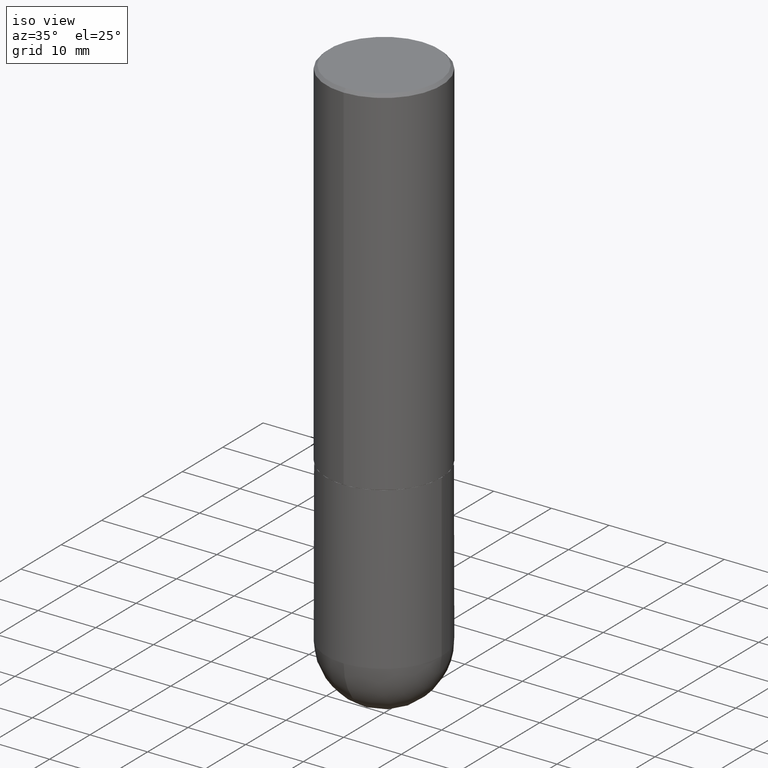
[diagram: clean part render]
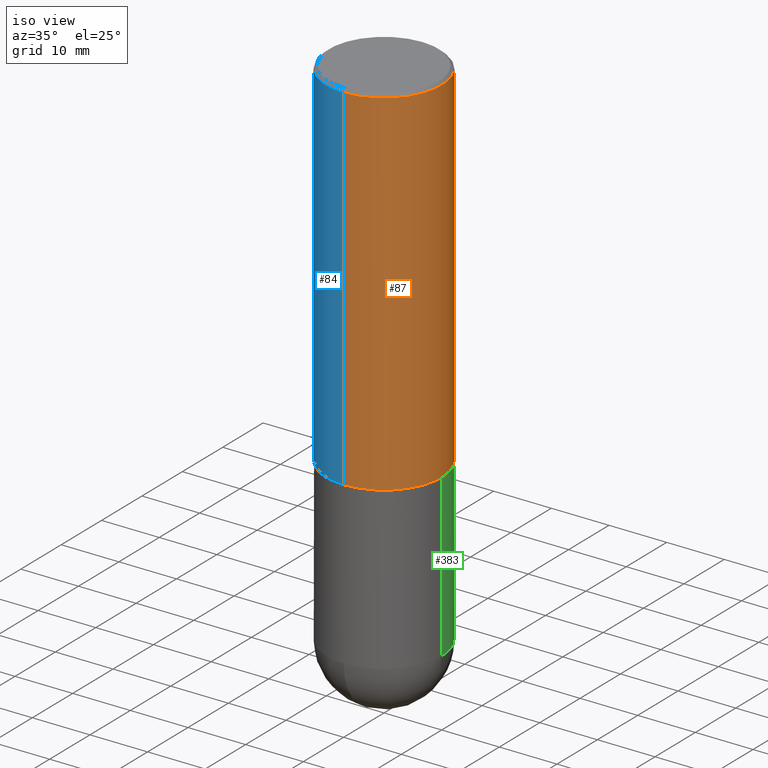
[diagram: same view with three faces highlighted in distinct colors, each labeled with its STEP entity id]
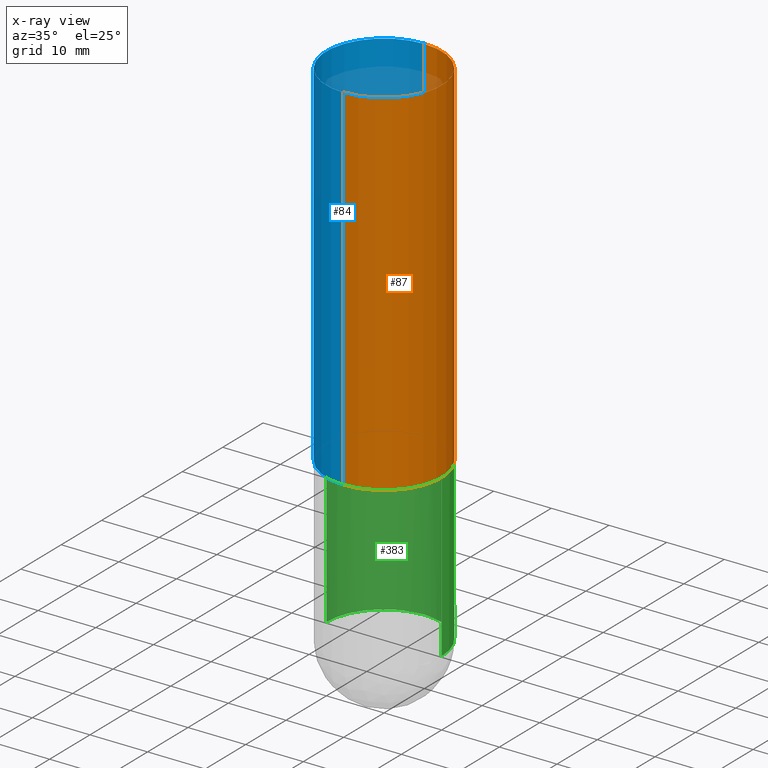
[diagram: x-ray of the same camera — body ghosted, the three highlighted faces saturated]
A machine part, iso view with three faces highlighted in distinct colors.
The next image is the same camera in x-ray (body ghosted, the three faces saturated) — at least one of them is partly hidden behind the body in this view.
Their STEP definitions:

[orange] entity #87 — the highlighted cylindrical surface (partial cylindrical patch) has radius 10 mm, axis along (-0, 0, 1).
#3 = ORIENTED_EDGE ( 'NONE', *, *, #237, .F. ) ;
#10 = CARTESIAN_POINT ( 'NONE',  ( -2.749192406205025235E-15, -0.3937000000000088207, -2.439899999999998847 ) ) ;
#34 = CARTESIAN_POINT ( 'NONE',  ( -2.749192406205084005E-15, -0.3937000000000001609, 1.375145271379853145E-15 ) ) ;
#41 = CARTESIAN_POINT ( 'NONE',  ( 2.749192406205083217E-15, 0.3936999999999999389, -0.02000000000000146452 ) ) ;
#55 = ORIENTED_EDGE ( 'NONE', *, *, #184, .F. ) ;
#58 = DIRECTION ( 'NONE',  ( -6.982962677686265922E-15, -1.000000000000000000, 3.469453890861393601E-15 ) ) ;
#65 = ORIENTED_EDGE ( 'NONE', *, *, #120, .T. ) ;
#78 = AXIS2_PLACEMENT_3D ( 'NONE', #157, #90, #187 ) ;
#87 = ADVANCED_FACE ( 'NONE', ( #317 ), #353, .T. ) ;
#89 = VERTEX_POINT ( 'NONE', #220 ) ;
#90 = DIRECTION ( 'NONE',  ( -2.444494936922263557E-29, 3.492875975056775902E-15, 1.000000000000000000 ) ) ;
#112 = AXIS2_PLACEMENT_3D ( 'NONE', #411, #290, #217 ) ;
#120 = EDGE_CURVE ( 'NONE', #349, #89, #252, .T. ) ;
#121 = DIRECTION ( 'NONE',  ( -2.444494936922263557E-29, 3.492875975056776297E-15, 1.000000000000000000 ) ) ;
#126 = CARTESIAN_POINT ( 'NONE',  ( 5.964323196596631600E-29, -8.522268091541027042E-15, -2.439900000000000180 ) ) ;
#137 = LINE ( 'NONE', #166, #170 ) ;
#157 = CARTESIAN_POINT ( 'NONE',  ( 4.888989873844550270E-31, -6.985751950113581979E-17, -0.02000000000000009062 ) ) ;
#166 = CARTESIAN_POINT ( 'NONE',  ( 2.797406750687515181E-15, 0.3937000000000001609, -1.375145271379853145E-15 ) ) ;
#170 = VECTOR ( 'NONE', #352, 39.37007874015748143 ) ;
#184 = EDGE_CURVE ( 'NONE', #409, #344, #261, .T. ) ;
#187 = DIRECTION ( 'NONE',  ( -6.982962677686265133E-15, -1.000000000000000000, 3.491137977679279424E-15 ) ) ;
#202 = EDGE_LOOP ( 'NONE', ( #65, #278, #55, #3 ) ) ;
#215 = VECTOR ( 'NONE', #121, 39.37007874015748143 ) ;
#217 = DIRECTION ( 'NONE',  ( -6.982962677686265922E-15, -1.000000000000000000, 3.492875975056775508E-15 ) ) ;
#220 = CARTESIAN_POINT ( 'NONE',  ( 2.797406750687545552E-15, 0.3936999999999917788, -2.439900000000001512 ) ) ;
#237 = EDGE_CURVE ( 'NONE', #349, #409, #319, .T. ) ;
#252 = CIRCLE ( 'NONE', #275, 0.3937000000000002720 ) ;
#261 = CIRCLE ( 'NONE', #78, 0.3937000000000000499 ) ;
#275 = AXIS2_PLACEMENT_3D ( 'NONE', #126, #312, #58 ) ;
#278 = ORIENTED_EDGE ( 'NONE', *, *, #304, .T. ) ;
#290 = DIRECTION ( 'NONE',  ( -2.444494936922263557E-29, 3.492875975056775902E-15, 1.000000000000000000 ) ) ;
#304 = EDGE_CURVE ( 'NONE', #89, #344, #137, .T. ) ;
#312 = DIRECTION ( 'NONE',  ( -2.444494936922263557E-29, 3.492875975056775902E-15, 1.000000000000000000 ) ) ;
#317 = FACE_OUTER_BOUND ( 'NONE', #202, .T. ) ;
#319 = LINE ( 'NONE', #34, #215 ) ;
#336 = CARTESIAN_POINT ( 'NONE',  ( -2.700978061722651252E-15, -0.3937000000000001054, -0.01999999999999871672 ) ) ;
#344 = VERTEX_POINT ( 'NONE', #41 ) ;
#349 = VERTEX_POINT ( 'NONE', #10 ) ;
#352 = DIRECTION ( 'NONE',  ( -2.444494936922263557E-29, 3.492875975056776297E-15, 1.000000000000000000 ) ) ;
#353 = CYLINDRICAL_SURFACE ( 'NONE', #112, 0.3937000000000001609 ) ;
#409 = VERTEX_POINT ( 'NONE', #336 ) ;
#411 = CARTESIAN_POINT ( 'NONE',  ( 0.000000000000000000, 0.000000000000000000, 0.000000000000000000 ) ) ;

[blue] entity #84 — the highlighted cylindrical surface (partial cylindrical patch) has radius 10 mm, axis along (-0, 0, 1).
#8 = CARTESIAN_POINT ( 'NONE',  ( 5.964323196596631600E-29, -8.522268091541027042E-15, -2.439900000000000180 ) ) ;
#10 = CARTESIAN_POINT ( 'NONE',  ( -2.749192406205025235E-15, -0.3937000000000088207, -2.439899999999998847 ) ) ;
#34 = CARTESIAN_POINT ( 'NONE',  ( -2.749192406205084005E-15, -0.3937000000000001609, 1.375145271379853145E-15 ) ) ;
#41 = CARTESIAN_POINT ( 'NONE',  ( 2.749192406205083217E-15, 0.3936999999999999389, -0.02000000000000146452 ) ) ;
#51 = DIRECTION ( 'NONE',  ( -2.444494936922263557E-29, 3.492875975056775902E-15, 1.000000000000000000 ) ) ;
#60 = AXIS2_PLACEMENT_3D ( 'NONE', #367, #51, #305 ) ;
#84 = ADVANCED_FACE ( 'NONE', ( #324 ), #172, .T. ) ;
#89 = VERTEX_POINT ( 'NONE', #220 ) ;
#102 = DIRECTION ( 'NONE',  ( -2.444494936922263557E-29, 3.492875975056775902E-15, 1.000000000000000000 ) ) ;
#103 = ORIENTED_EDGE ( 'NONE', *, *, #235, .F. ) ;
#106 = CIRCLE ( 'NONE', #390, 0.3937000000000000499 ) ;
#121 = DIRECTION ( 'NONE',  ( -2.444494936922263557E-29, 3.492875975056776297E-15, 1.000000000000000000 ) ) ;
#135 = AXIS2_PLACEMENT_3D ( 'NONE', #8, #102, #227 ) ;
#137 = LINE ( 'NONE', #166, #170 ) ;
#139 = EDGE_LOOP ( 'NONE', ( #359, #161, #223, #103 ) ) ;
#161 = ORIENTED_EDGE ( 'NONE', *, *, #270, .T. ) ;
#166 = CARTESIAN_POINT ( 'NONE',  ( 2.797406750687515181E-15, 0.3937000000000001609, -1.375145271379853145E-15 ) ) ;
#170 = VECTOR ( 'NONE', #352, 39.37007874015748143 ) ;
#172 = CYLINDRICAL_SURFACE ( 'NONE', #60, 0.3937000000000001609 ) ;
#215 = VECTOR ( 'NONE', #121, 39.37007874015748143 ) ;
#220 = CARTESIAN_POINT ( 'NONE',  ( 2.797406750687545552E-15, 0.3936999999999917788, -2.439900000000001512 ) ) ;
#223 = ORIENTED_EDGE ( 'NONE', *, *, #237, .T. ) ;
#227 = DIRECTION ( 'NONE',  ( -6.982962677686265922E-15, -1.000000000000000000, 3.469453890861393601E-15 ) ) ;
#235 = EDGE_CURVE ( 'NONE', #344, #409, #106, .T. ) ;
#237 = EDGE_CURVE ( 'NONE', #349, #409, #319, .T. ) ;
#247 = DIRECTION ( 'NONE',  ( -2.444494936922263557E-29, 3.492875975056775902E-15, 1.000000000000000000 ) ) ;
#270 = EDGE_CURVE ( 'NONE', #89, #349, #369, .T. ) ;
#277 = DIRECTION ( 'NONE',  ( -6.982962677686265133E-15, -1.000000000000000000, 3.491137977679279424E-15 ) ) ;
#304 = EDGE_CURVE ( 'NONE', #89, #344, #137, .T. ) ;
#305 = DIRECTION ( 'NONE',  ( -6.982962677686265922E-15, -1.000000000000000000, 3.492875975056775508E-15 ) ) ;
#319 = LINE ( 'NONE', #34, #215 ) ;
#324 = FACE_OUTER_BOUND ( 'NONE', #139, .T. ) ;
#336 = CARTESIAN_POINT ( 'NONE',  ( -2.700978061722651252E-15, -0.3937000000000001054, -0.01999999999999871672 ) ) ;
#338 = CARTESIAN_POINT ( 'NONE',  ( 4.888989873844550270E-31, -6.985751950113581979E-17, -0.02000000000000009062 ) ) ;
#344 = VERTEX_POINT ( 'NONE', #41 ) ;
#349 = VERTEX_POINT ( 'NONE', #10 ) ;
#352 = DIRECTION ( 'NONE',  ( -2.444494936922263557E-29, 3.492875975056776297E-15, 1.000000000000000000 ) ) ;
#359 = ORIENTED_EDGE ( 'NONE', *, *, #304, .F. ) ;
#367 = CARTESIAN_POINT ( 'NONE',  ( 0.000000000000000000, 0.000000000000000000, 0.000000000000000000 ) ) ;
#369 = CIRCLE ( 'NONE', #135, 0.3937000000000002720 ) ;
#390 = AXIS2_PLACEMENT_3D ( 'NONE', #338, #247, #277 ) ;
#409 = VERTEX_POINT ( 'NONE', #336 ) ;

[green] entity #383 — the highlighted cylindrical surface (partial cylindrical patch) has radius 10 mm, axis along (-0, 0, 1).
#2 = CARTESIAN_POINT ( 'NONE',  ( 0.000000000000000000, 0.000000000000000000, 0.000000000000000000 ) ) ;
#7 = CIRCLE ( 'NONE', #30, 0.3937000000000001054 ) ;
#14 = AXIS2_PLACEMENT_3D ( 'NONE', #231, #171, #197 ) ;
#22 = ORIENTED_EDGE ( 'NONE', *, *, #385, .F. ) ;
#28 = CARTESIAN_POINT ( 'NONE',  ( -0.3937000000000000499, -7.649454563265061811E-15, -2.440900000000000070 ) ) ;
#30 = AXIS2_PLACEMENT_3D ( 'NONE', #294, #260, #140 ) ;
#36 = DIRECTION ( 'NONE',  ( 1.000000000000000000, -6.982962677686267499E-15, 0.000000000000000000 ) ) ;
#38 = AXIS2_PLACEMENT_3D ( 'NONE', #326, #386, #36 ) ;
#45 = CARTESIAN_POINT ( 'NONE',  ( 0.3937000000000001054, -1.319605372015766376E-14, -3.543299999999999450 ) ) ;
#46 = VERTEX_POINT ( 'NONE', #45 ) ;
#53 = CARTESIAN_POINT ( 'NONE',  ( -0.3937000000000001054, -7.649454563265064966E-15, -3.543299999999999450 ) ) ;
#54 = CIRCLE ( 'NONE', #38, 0.3937000000000000499 ) ;
#56 = CARTESIAN_POINT ( 'NONE',  ( 2.749192406205169202E-15, 0.3936999999999876709, -3.543300000000000782 ) ) ;
#66 = CARTESIAN_POINT ( 'NONE',  ( 0.3937000000000001054, -2.749192406205084005E-15, 1.919750796630860452E-29 ) ) ;
#91 = ORIENTED_EDGE ( 'NONE', *, *, #279, .F. ) ;
#118 = LINE ( 'NONE', #185, #127 ) ;
#127 = VECTOR ( 'NONE', #159, 39.37007874015748143 ) ;
#130 = DIRECTION ( 'NONE',  ( -2.445468806185136877E-29, 3.491481338843145188E-15, 1.000000000000000000 ) ) ;
#131 = DIRECTION ( 'NONE',  ( 1.000000000000000000, -6.982962677686266711E-15, 4.876176775795935793E-29 ) ) ;
#140 = DIRECTION ( 'NONE',  ( 1.000000000000000000, -6.982962677686266711E-15, 0.000000000000000000 ) ) ;
#143 = AXIS2_PLACEMENT_3D ( 'NONE', #2, #192, #131 ) ;
#149 = CIRCLE ( 'NONE', #14, 0.3937000000000001054 ) ;
#159 = DIRECTION ( 'NONE',  ( -2.445468806185136877E-29, 3.491481338843145188E-15, 1.000000000000000000 ) ) ;
#164 = EDGE_CURVE ( 'NONE', #219, #183, #118, .T. ) ;
#171 = DIRECTION ( 'NONE',  ( -2.445468806185136597E-29, 3.491481338843145583E-15, 1.000000000000000000 ) ) ;
#183 = VERTEX_POINT ( 'NONE', #28 ) ;
#185 = CARTESIAN_POINT ( 'NONE',  ( -0.3937000000000001054, 2.797406750687515181E-15, -1.936584745033357016E-29 ) ) ;
#192 = DIRECTION ( 'NONE',  ( -2.445468806185136597E-29, 3.491481338843145583E-15, 1.000000000000000000 ) ) ;
#197 = DIRECTION ( 'NONE',  ( 1.000000000000000000, -6.982962677686266711E-15, 0.000000000000000000 ) ) ;
#204 = FACE_OUTER_BOUND ( 'NONE', #248, .T. ) ;
#219 = VERTEX_POINT ( 'NONE', #53 ) ;
#221 = VERTEX_POINT ( 'NONE', #56 ) ;
#229 = ORIENTED_EDGE ( 'NONE', *, *, #164, .T. ) ;
#231 = CARTESIAN_POINT ( 'NONE',  ( 8.665029620955792948E-29, -1.237136582792291707E-14, -3.543299999999999450 ) ) ;
#236 = VERTEX_POINT ( 'NONE', #406 ) ;
#248 = EDGE_LOOP ( 'NONE', ( #387, #229, #22, #91, #363 ) ) ;
#260 = DIRECTION ( 'NONE',  ( -2.445468806185136597E-29, 3.491481338843145583E-15, 1.000000000000000000 ) ) ;
#274 = EDGE_CURVE ( 'NONE', #221, #219, #149, .T. ) ;
#279 = EDGE_CURVE ( 'NONE', #46, #236, #299, .T. ) ;
#291 = CYLINDRICAL_SURFACE ( 'NONE', #143, 0.3937000000000001054 ) ;
#294 = CARTESIAN_POINT ( 'NONE',  ( 8.665029620955792948E-29, -1.237136582792291707E-14, -3.543299999999999450 ) ) ;
#299 = LINE ( 'NONE', #66, #380 ) ;
#326 = CARTESIAN_POINT ( 'NONE',  ( 5.969144809017300159E-29, -8.522356799982234543E-15, -2.440900000000000070 ) ) ;
#328 = EDGE_CURVE ( 'NONE', #46, #221, #7, .T. ) ;
#363 = ORIENTED_EDGE ( 'NONE', *, *, #328, .T. ) ;
#380 = VECTOR ( 'NONE', #130, 39.37007874015748143 ) ;
#383 = ADVANCED_FACE ( 'NONE', ( #204 ), #291, .T. ) ;
#385 = EDGE_CURVE ( 'NONE', #236, #183, #54, .T. ) ;
#386 = DIRECTION ( 'NONE',  ( -2.445468806185136597E-29, 3.491481338843145583E-15, 1.000000000000000000 ) ) ;
#387 = ORIENTED_EDGE ( 'NONE', *, *, #274, .T. ) ;
#406 = CARTESIAN_POINT ( 'NONE',  ( 0.3937000000000000499, -1.127154920618731776E-14, -2.440900000000000070 ) ) ;